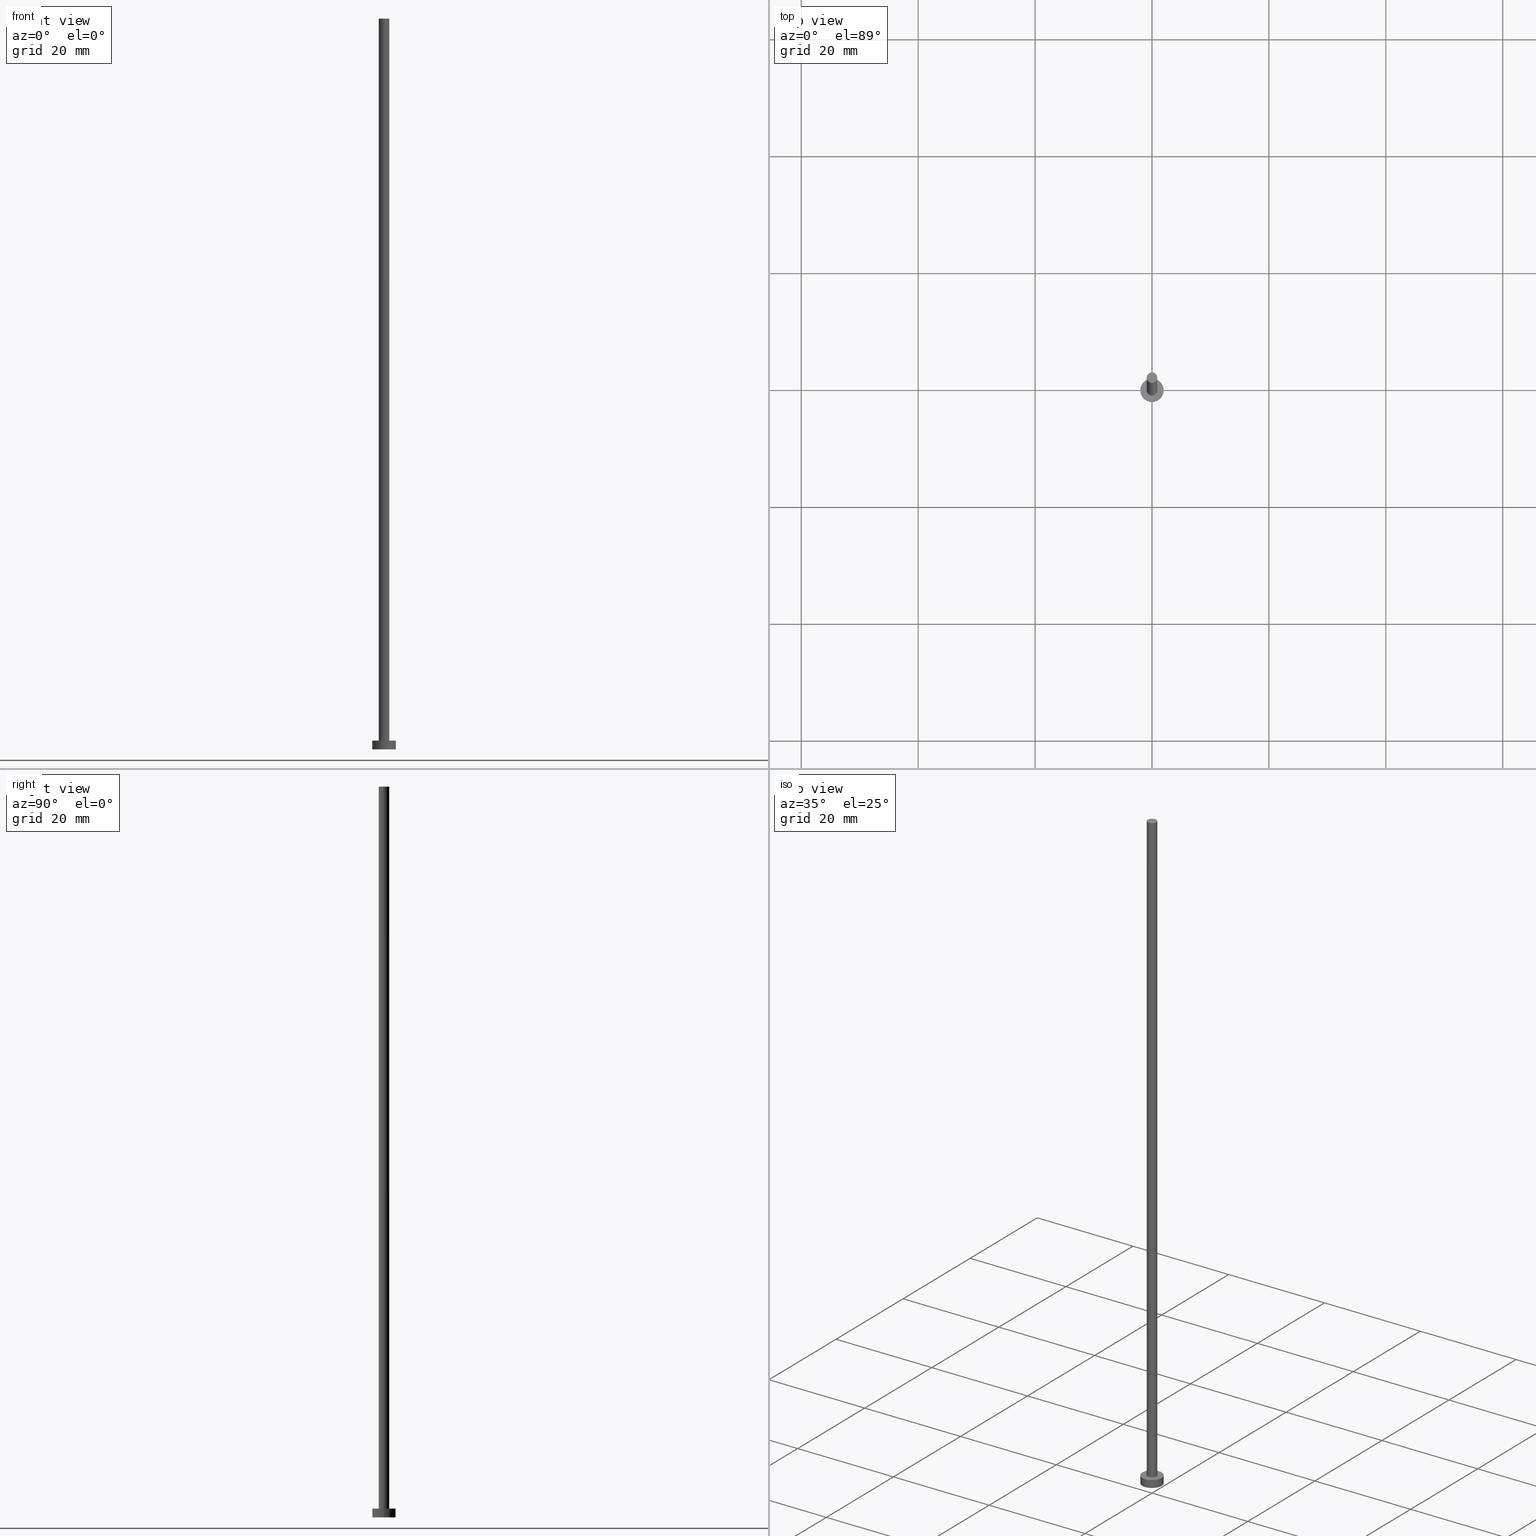
[diagram: canonical four-view strip — front | top / right | iso, engineering-drawing reading convention]
A machine part, canonical four-view strip (front | top / right | iso — engineering-drawing reading convention). The complete STEP part file that produces these views, byte-faithful:
ISO-10303-21;
HEADER;
FILE_DESCRIPTION (( 'STEP AP203' ),
    '1' );
FILE_NAME ('3f76.STEP',
    '2023-02-12T12:54:41',
    ( '' ),
    ( '' ),
    'SwSTEP 2.0',
    'SolidWorks 2019',
    '' );
FILE_SCHEMA (( 'CONFIG_CONTROL_DESIGN' ));
ENDSEC;

DATA;
#1 = LOCAL_TIME ( 13, 54, 41.00000000000000000, #29 ) ;
#2 = CYLINDRICAL_SURFACE ( 'NONE', #137, 2.000000000000000000 ) ;
#3 = ADVANCED_FACE ( 'NONE', ( #32 ), #213, .T. ) ;
#4 = ORIENTED_EDGE ( 'NONE', *, *, #41, .F. ) ;
#5 = AXIS2_PLACEMENT_3D ( 'NONE', #56, #33, #232 ) ;
#6 = PERSON_AND_ORGANIZATION ( #30, #24 ) ;
#7 = ORIENTED_EDGE ( 'NONE', *, *, #164, .F. ) ;
#8 = VERTEX_POINT ( 'NONE', #11 ) ;
#9 = CARTESIAN_POINT ( 'NONE',  ( -2.000000000000000000, 0.000000000000000000, 0.000000000000000000 ) ) ;
#10 = CARTESIAN_POINT ( 'NONE',  ( 0.000000000000000000, 0.000000000000000000, 1.500000000000000000 ) ) ;
#11 = CARTESIAN_POINT ( 'NONE',  ( 2.000000000000000000, 2.449293598294706414E-16, 0.000000000000000000 ) ) ;
#12 = APPROVAL_PERSON_ORGANIZATION ( #6, #86, #207 ) ;
#13 = CARTESIAN_POINT ( 'NONE',  ( 0.000000000000000000, 0.000000000000000000, 0.000000000000000000 ) ) ;
#14 = MECHANICAL_CONTEXT ( 'NONE', #122, 'mechanical' ) ;
#15 = CARTESIAN_POINT ( 'NONE',  ( -0.9000000000000000222, 0.000000000000000000, 125.0000000000000000 ) ) ;
#16 = APPLICATION_PROTOCOL_DEFINITION ( 'international standard', 'config_control_design', 1994, #228 ) ;
#17 = CARTESIAN_POINT ( 'NONE',  ( -2.000000000000000000, 0.000000000000000000, 1.500000000000000000 ) ) ;
#18 = PLANE ( 'NONE',  #226 ) ;
#19 = DIRECTION ( 'NONE',  ( 0.000000000000000000, 0.000000000000000000, 1.000000000000000000 ) ) ;
#20 = COORDINATED_UNIVERSAL_TIME_OFFSET ( 1, 0, .AHEAD. ) ;
#21 = ADVANCED_FACE ( 'NONE', ( #151, #52 ), #198, .T. ) ;
#22 = AXIS2_PLACEMENT_3D ( 'NONE', #229, #200, #246 ) ;
#23 = CC_DESIGN_PERSON_AND_ORGANIZATION_ASSIGNMENT ( #147, #108, ( #201 ) ) ;
#24 = ORGANIZATION ( 'NEUR�EN�', 'NEUR�EN�', '' ) ;
#25 = CALENDAR_DATE ( 2023, 12, 2 ) ;
#26 = ORIENTED_EDGE ( 'NONE', *, *, #230, .T. ) ;
#27 = ORIENTED_EDGE ( 'NONE', *, *, #219, .T. ) ;
#28 = CARTESIAN_POINT ( 'NONE',  ( 0.000000000000000000, 0.000000000000000000, 125.0000000000000000 ) ) ;
#29 = COORDINATED_UNIVERSAL_TIME_OFFSET ( 1, 0, .AHEAD. ) ;
#30 = PERSON ( 'NEUR�EN�', 'NEUR�EN�', 'NEUR�EN�', ('NEUR�EN�'), ('NEUR�EN�'), ('NEUR�EN�') ) ;
#31 = CARTESIAN_POINT ( 'NONE',  ( 0.000000000000000000, 0.000000000000000000, 1.500000000000000000 ) ) ;
#32 = FACE_OUTER_BOUND ( 'NONE', #69, .T. ) ;
#33 = DIRECTION ( 'NONE',  ( 0.000000000000000000, 0.000000000000000000, 1.000000000000000000 ) ) ;
#34 = PRODUCT_RELATED_PRODUCT_CATEGORY ( 'detail', '', ( #92 ) ) ;
#35 = DIRECTION ( 'NONE',  ( 1.000000000000000000, 0.000000000000000000, 0.000000000000000000 ) ) ;
#36 = APPROVAL_PERSON_ORGANIZATION ( #102, #65, #53 ) ;
#37 = CARTESIAN_POINT ( 'NONE',  ( 0.9000000000000000222, 1.102182119232617788E-16, 125.0000000000000000 ) ) ;
#38 = ORIENTED_EDGE ( 'NONE', *, *, #177, .T. ) ;
#39 = DIRECTION ( 'NONE',  ( 1.000000000000000000, 0.000000000000000000, -0.000000000000000000 ) ) ;
#40 = APPROVAL_DATE_TIME ( #103, #214 ) ;
#41 = EDGE_CURVE ( 'NONE', #8, #107, #80, .T. ) ;
#42 = CARTESIAN_POINT ( 'NONE',  ( 0.000000000000000000, 0.000000000000000000, 1.500000000000000000 ) ) ;
#43 = ORIENTED_EDGE ( 'NONE', *, *, #244, .T. ) ;
#44 = DATE_AND_TIME ( #238, #175 ) ;
#45 = DIRECTION ( 'NONE',  ( 1.000000000000000000, 0.000000000000000000, 0.000000000000000000 ) ) ;
#46 = AXIS2_PLACEMENT_3D ( 'NONE', #13, #218, #82 ) ;
#47 = ORIENTED_EDGE ( 'NONE', *, *, #75, .T. ) ;
#48 = ORIENTED_EDGE ( 'NONE', *, *, #106, .T. ) ;
#49 = ADVANCED_BREP_SHAPE_REPRESENTATION ( '3f76', ( #181, #72 ), #163 ) ;
#50 = DATE_AND_TIME ( #109, #217 ) ;
#51 = PRODUCT_DEFINITION_SHAPE ( 'NONE', 'NONE',  #113 ) ;
#52 = FACE_OUTER_BOUND ( 'NONE', #76, .T. ) ;
#53 = APPROVAL_ROLE ( '' ) ;
#54 = EDGE_CURVE ( 'NONE', #67, #173, #85, .T. ) ;
#55 = DIRECTION ( 'NONE',  ( 0.000000000000000000, 0.000000000000000000, 1.000000000000000000 ) ) ;
#56 = CARTESIAN_POINT ( 'NONE',  ( 0.000000000000000000, 0.000000000000000000, 1.500000000000000000 ) ) ;
#57 = DIRECTION ( 'NONE',  ( -0.000000000000000000, -0.000000000000000000, -1.000000000000000000 ) ) ;
#58 = CC_DESIGN_SECURITY_CLASSIFICATION ( #204, ( #201 ) ) ;
#59 = CARTESIAN_POINT ( 'NONE',  ( 0.000000000000000000, 0.000000000000000000, 1.500000000000000000 ) ) ;
#60 = DIRECTION ( 'NONE',  ( -0.000000000000000000, -0.000000000000000000, -1.000000000000000000 ) ) ;
#61 = AXIS2_PLACEMENT_3D ( 'NONE', #31, #150, #250 ) ;
#62 =( NAMED_UNIT ( * ) PLANE_ANGLE_UNIT ( ) SI_UNIT ( $, .RADIAN. ) );
#63 = AXIS2_PLACEMENT_3D ( 'NONE', #254, #142, #39 ) ;
#64 = CALENDAR_DATE ( 2023, 12, 2 ) ;
#65 = APPROVAL ( #99, 'NEUR�EN�' ) ;
#66 = CARTESIAN_POINT ( 'NONE',  ( -0.9000000000000000222, 0.000000000000000000, 1.500000000000000000 ) ) ;
#67 = VERTEX_POINT ( 'NONE', #15 ) ;
#68 = CARTESIAN_POINT ( 'NONE',  ( 2.000000000000000000, 2.449293598294706414E-16, 1.500000000000000000 ) ) ;
#69 = EDGE_LOOP ( 'NONE', ( #130, #171, #129, #240 ) ) ;
#70 = AXIS2_PLACEMENT_3D ( 'NONE', #59, #97, #79 ) ;
#71 = ORIENTED_EDGE ( 'NONE', *, *, #177, .F. ) ;
#72 = AXIS2_PLACEMENT_3D ( 'NONE', #169, #77, #74 ) ;
#73 = SHAPE_DEFINITION_REPRESENTATION ( #51, #49 ) ;
#74 = DIRECTION ( 'NONE',  ( 1.000000000000000000, 0.000000000000000000, 0.000000000000000000 ) ) ;
#75 = EDGE_CURVE ( 'NONE', #158, #245, #205, .T. ) ;
#76 = EDGE_LOOP ( 'NONE', ( #26, #47 ) ) ;
#77 = DIRECTION ( 'NONE',  ( 0.000000000000000000, 0.000000000000000000, 1.000000000000000000 ) ) ;
#78 = ORIENTED_EDGE ( 'NONE', *, *, #172, .T. ) ;
#79 = DIRECTION ( 'NONE',  ( -1.000000000000000000, 0.000000000000000000, 0.000000000000000000 ) ) ;
#80 = CIRCLE ( 'NONE', #46, 2.000000000000000000 ) ;
#81 = DIRECTION ( 'NONE',  ( -0.000000000000000000, -0.000000000000000000, -1.000000000000000000 ) ) ;
#82 = DIRECTION ( 'NONE',  ( 1.000000000000000000, 0.000000000000000000, 0.000000000000000000 ) ) ;
#83 = CC_DESIGN_DATE_AND_TIME_ASSIGNMENT ( #50, #194, ( #204 ) ) ;
#84 = PERSON_AND_ORGANIZATION ( #30, #24 ) ;
#85 = CIRCLE ( 'NONE', #212, 0.9000000000000000222 ) ;
#86 = APPROVAL ( #91, 'NEUR�EN�' ) ;
#87 = PERSON_AND_ORGANIZATION_ROLE ( 'creator' ) ;
#88 = CIRCLE ( 'NONE', #144, 2.000000000000000000 ) ;
#89 = CARTESIAN_POINT ( 'NONE',  ( 0.000000000000000000, 0.000000000000000000, 125.0000000000000000 ) ) ;
#90 = VERTEX_POINT ( 'NONE', #153 ) ;
#91 = APPROVAL_STATUS ( 'not_yet_approved' ) ;
#92 = PRODUCT ( '3f76', '3f76', '', ( #14 ) ) ;
#93 = ORIENTED_EDGE ( 'NONE', *, *, #106, .F. ) ;
#94 = EDGE_LOOP ( 'NONE', ( #93, #146 ) ) ;
#95 = FACE_OUTER_BOUND ( 'NONE', #206, .T. ) ;
#96 = CARTESIAN_POINT ( 'NONE',  ( -0.9000000000000000222, 0.000000000000000000, 125.0000000000000000 ) ) ;
#97 = DIRECTION ( 'NONE',  ( -0.000000000000000000, -0.000000000000000000, -1.000000000000000000 ) ) ;
#98 = LINE ( 'NONE', #180, #168 ) ;
#99 = APPROVAL_STATUS ( 'not_yet_approved' ) ;
#100 = CC_DESIGN_PERSON_AND_ORGANIZATION_ASSIGNMENT ( #112, #227, ( #204 ) ) ;
#101 = FACE_OUTER_BOUND ( 'NONE', #243, .T. ) ;
#102 = PERSON_AND_ORGANIZATION ( #30, #24 ) ;
#103 = DATE_AND_TIME ( #64, #237 ) ;
#104 = LOCAL_TIME ( 13, 54, 41.00000000000000000, #192 ) ;
#105 = PERSON_AND_ORGANIZATION ( #30, #24 ) ;
#106 = EDGE_CURVE ( 'NONE', #191, #90, #124, .T. ) ;
#107 = VERTEX_POINT ( 'NONE', #9 ) ;
#108 = PERSON_AND_ORGANIZATION_ROLE ( 'design_supplier' ) ;
#109 = CALENDAR_DATE ( 2023, 12, 2 ) ;
#110 = VECTOR ( 'NONE', #209, 1000.000000000000000 ) ;
#111 = ORIENTED_EDGE ( 'NONE', *, *, #219, .F. ) ;
#112 = PERSON_AND_ORGANIZATION ( #30, #24 ) ;
#113 = PRODUCT_DEFINITION ( 'NEZN�M�', '', #201, #141 ) ;
#114 = DIRECTION ( 'NONE',  ( -1.000000000000000000, 0.000000000000000000, 0.000000000000000000 ) ) ;
#115 = CALENDAR_DATE ( 2023, 12, 2 ) ;
#116 = DIRECTION ( 'NONE',  ( 1.000000000000000000, 0.000000000000000000, 0.000000000000000000 ) ) ;
#117 = DIRECTION ( 'NONE',  ( 1.000000000000000000, 0.000000000000000000, 0.000000000000000000 ) ) ;
#118 = CARTESIAN_POINT ( 'NONE',  ( 0.000000000000000000, 0.000000000000000000, 1.500000000000000000 ) ) ;
#119 = ADVANCED_FACE ( 'NONE', ( #121 ), #234, .T. ) ;
#120 = UNCERTAINTY_MEASURE_WITH_UNIT (LENGTH_MEASURE( 1.000000000000000082E-05 ), #251, 'distance_accuracy_value', 'NONE');
#121 = FACE_OUTER_BOUND ( 'NONE', #239, .T. ) ;
#122 = APPLICATION_CONTEXT ( 'configuration controlled 3d designs of mechanical parts and assemblies' ) ;
#123 = APPROVAL_ROLE ( '' ) ;
#124 = CIRCLE ( 'NONE', #5, 0.9000000000000000222 ) ;
#125 = DATE_AND_TIME ( #115, #1 ) ;
#126 = ADVANCED_FACE ( 'NONE', ( #95 ), #18, .F. ) ;
#127 = APPLICATION_PROTOCOL_DEFINITION ( 'international standard', 'config_control_design', 1994, #122 ) ;
#128 = CC_DESIGN_APPROVAL ( #214, ( #201 ) ) ;
#129 = ORIENTED_EDGE ( 'NONE', *, *, #222, .T. ) ;
#130 = ORIENTED_EDGE ( 'NONE', *, *, #244, .F. ) ;
#131 = CC_DESIGN_PERSON_AND_ORGANIZATION_ASSIGNMENT ( #186, #203, ( #201 ) ) ;
#132 = DIRECTION ( 'NONE',  ( 0.000000000000000000, 0.000000000000000000, 1.000000000000000000 ) ) ;
#133 = SECURITY_CLASSIFICATION_LEVEL ( 'unclassified' ) ;
#134 = CARTESIAN_POINT ( 'NONE',  ( 0.000000000000000000, 0.000000000000000000, 125.0000000000000000 ) ) ;
#135 = DIRECTION ( 'NONE',  ( 0.000000000000000000, 0.000000000000000000, 1.000000000000000000 ) ) ;
#136 = EDGE_CURVE ( 'NONE', #67, #191, #199, .T. ) ;
#137 = AXIS2_PLACEMENT_3D ( 'NONE', #42, #60, #157 ) ;
#138 = CARTESIAN_POINT ( 'NONE',  ( 2.000000000000000000, 2.449293598294706414E-16, 1.500000000000000000 ) ) ;
#139 = CLOSED_SHELL ( 'NONE', ( #3, #233, #143, #21, #126, #119, #182 ) ) ;
#140 = CARTESIAN_POINT ( 'NONE',  ( 0.000000000000000000, 0.000000000000000000, 1.500000000000000000 ) ) ;
#141 = DESIGN_CONTEXT ( 'detailed design', #228, 'design' ) ;
#142 = DIRECTION ( 'NONE',  ( 0.000000000000000000, 0.000000000000000000, 1.000000000000000000 ) ) ;
#143 = ADVANCED_FACE ( 'NONE', ( #101 ), #247, .T. ) ;
#144 = AXIS2_PLACEMENT_3D ( 'NONE', #140, #253, #45 ) ;
#145 = VECTOR ( 'NONE', #176, 1000.000000000000000 ) ;
#146 = ORIENTED_EDGE ( 'NONE', *, *, #222, .F. ) ;
#147 = PERSON_AND_ORGANIZATION ( #30, #24 ) ;
#148 = AXIS2_PLACEMENT_3D ( 'NONE', #89, #225, #35 ) ;
#149 = EDGE_LOOP ( 'NONE', ( #211, #27, #202, #210 ) ) ;
#150 = DIRECTION ( 'NONE',  ( 0.000000000000000000, 0.000000000000000000, 1.000000000000000000 ) ) ;
#151 = FACE_BOUND ( 'NONE', #94, .T. ) ;
#152 = DIRECTION ( 'NONE',  ( 0.000000000000000000, 0.000000000000000000, 1.000000000000000000 ) ) ;
#153 = CARTESIAN_POINT ( 'NONE',  ( 0.9000000000000000222, 1.102182119232617788E-16, 1.500000000000000000 ) ) ;
#154 = CARTESIAN_POINT ( 'NONE',  ( 0.000000000000000000, 0.000000000000000000, 0.000000000000000000 ) ) ;
#155 = PLANE ( 'NONE',  #63 ) ;
#156 = AXIS2_PLACEMENT_3D ( 'NONE', #118, #132, #117 ) ;
#157 = DIRECTION ( 'NONE',  ( -1.000000000000000000, 0.000000000000000000, 0.000000000000000000 ) ) ;
#158 = VERTEX_POINT ( 'NONE', #138 ) ;
#159 = COORDINATED_UNIVERSAL_TIME_OFFSET ( 1, 0, .AHEAD. ) ;
#160 = APPROVAL_DATE_TIME ( #125, #65 ) ;
#161 = CC_DESIGN_PERSON_AND_ORGANIZATION_ASSIGNMENT ( #255, #87, ( #113 ) ) ;
#162 = DIRECTION ( 'NONE',  ( 1.000000000000000000, 0.000000000000000000, 0.000000000000000000 ) ) ;
#163 =( GEOMETRIC_REPRESENTATION_CONTEXT ( 3 ) GLOBAL_UNCERTAINTY_ASSIGNED_CONTEXT ( ( #120 ) ) GLOBAL_UNIT_ASSIGNED_CONTEXT ( ( #251, #62, #188 ) ) REPRESENTATION_CONTEXT ( 'NONE', 'WORKASPACE' ) );
#164 = EDGE_CURVE ( 'NONE', #173, #90, #178, .T. ) ;
#165 = ORIENTED_EDGE ( 'NONE', *, *, #230, .F. ) ;
#166 = COORDINATED_UNIVERSAL_TIME_OFFSET ( 1, 0, .AHEAD. ) ;
#167 = ORIENTED_EDGE ( 'NONE', *, *, #54, .T. ) ;
#168 = VECTOR ( 'NONE', #174, 1000.000000000000000 ) ;
#169 = CARTESIAN_POINT ( 'NONE',  ( 0.000000000000000000, 0.000000000000000000, 0.000000000000000000 ) ) ;
#170 = CC_DESIGN_APPROVAL ( #65, ( #113 ) ) ;
#171 = ORIENTED_EDGE ( 'NONE', *, *, #164, .T. ) ;
#172 = EDGE_CURVE ( 'NONE', #245, #107, #98, .T. ) ;
#173 = VERTEX_POINT ( 'NONE', #37 ) ;
#174 = DIRECTION ( 'NONE',  ( -0.000000000000000000, -0.000000000000000000, -1.000000000000000000 ) ) ;
#175 = LOCAL_TIME ( 13, 54, 41.00000000000000000, #159 ) ;
#176 = DIRECTION ( 'NONE',  ( -0.000000000000000000, -0.000000000000000000, -1.000000000000000000 ) ) ;
#177 = EDGE_CURVE ( 'NONE', #107, #8, #223, .T. ) ;
#178 = LINE ( 'NONE', #248, #184 ) ;
#179 = PERSON_AND_ORGANIZATION_ROLE ( 'design_owner' ) ;
#180 = CARTESIAN_POINT ( 'NONE',  ( -2.000000000000000000, 0.000000000000000000, 1.500000000000000000 ) ) ;
#181 = MANIFOLD_SOLID_BREP ( 'P�idat vysunut�m3', #139 ) ;
#182 = ADVANCED_FACE ( 'NONE', ( #185 ), #155, .T. ) ;
#183 = CIRCLE ( 'NONE', #148, 0.9000000000000000222 ) ;
#184 = VECTOR ( 'NONE', #81, 1000.000000000000000 ) ;
#185 = FACE_OUTER_BOUND ( 'NONE', #224, .T. ) ;
#186 = PERSON_AND_ORGANIZATION ( #30, #24 ) ;
#187 = CARTESIAN_POINT ( 'NONE',  ( 0.000000000000000000, 0.000000000000000000, 0.000000000000000000 ) ) ;
#188 =( NAMED_UNIT ( * ) SI_UNIT ( $, .STERADIAN. ) SOLID_ANGLE_UNIT ( ) );
#189 = CC_DESIGN_PERSON_AND_ORGANIZATION_ASSIGNMENT ( #84, #179, ( #92 ) ) ;
#190 = AXIS2_PLACEMENT_3D ( 'NONE', #187, #19, #162 ) ;
#191 = VERTEX_POINT ( 'NONE', #66 ) ;
#192 = COORDINATED_UNIVERSAL_TIME_OFFSET ( 1, 0, .AHEAD. ) ;
#193 = ORIENTED_EDGE ( 'NONE', *, *, #136, .T. ) ;
#194 = DATE_TIME_ROLE ( 'classification_date' ) ;
#195 = CC_DESIGN_DATE_AND_TIME_ASSIGNMENT ( #44, #221, ( #113 ) ) ;
#196 = ORIENTED_EDGE ( 'NONE', *, *, #54, .F. ) ;
#197 = APPROVAL_DATE_TIME ( #241, #86 ) ;
#198 = PLANE ( 'NONE',  #61 ) ;
#199 = LINE ( 'NONE', #96, #145 ) ;
#200 = DIRECTION ( 'NONE',  ( -0.000000000000000000, -0.000000000000000000, -1.000000000000000000 ) ) ;
#201 = PRODUCT_DEFINITION_FORMATION_WITH_SPECIFIED_SOURCE ( 'LIBOVOLN�', '', #92, .NOT_KNOWN. ) ;
#202 = ORIENTED_EDGE ( 'NONE', *, *, #41, .T. ) ;
#203 = PERSON_AND_ORGANIZATION_ROLE ( 'creator' ) ;
#204 = SECURITY_CLASSIFICATION ( '', '', #133 ) ;
#205 = CIRCLE ( 'NONE', #156, 2.000000000000000000 ) ;
#206 = EDGE_LOOP ( 'NONE', ( #71, #4 ) ) ;
#207 = APPROVAL_ROLE ( '' ) ;
#208 = AXIS2_PLACEMENT_3D ( 'NONE', #10, #55, #116 ) ;
#209 = DIRECTION ( 'NONE',  ( -0.000000000000000000, -0.000000000000000000, -1.000000000000000000 ) ) ;
#210 = ORIENTED_EDGE ( 'NONE', *, *, #172, .F. ) ;
#211 = ORIENTED_EDGE ( 'NONE', *, *, #75, .F. ) ;
#212 = AXIS2_PLACEMENT_3D ( 'NONE', #134, #152, #215 ) ;
#213 = CYLINDRICAL_SURFACE ( 'NONE', #22, 0.9000000000000000222 ) ;
#214 = APPROVAL ( #235, 'NEUR�EN�' ) ;
#215 = DIRECTION ( 'NONE',  ( 1.000000000000000000, 0.000000000000000000, 0.000000000000000000 ) ) ;
#216 = DIRECTION ( 'NONE',  ( 1.000000000000000000, 0.000000000000000000, -0.000000000000000000 ) ) ;
#217 = LOCAL_TIME ( 13, 54, 41.00000000000000000, #166 ) ;
#218 = DIRECTION ( 'NONE',  ( 0.000000000000000000, 0.000000000000000000, 1.000000000000000000 ) ) ;
#219 = EDGE_CURVE ( 'NONE', #158, #8, #220, .T. ) ;
#220 = LINE ( 'NONE', #68, #110 ) ;
#221 = DATE_TIME_ROLE ( 'creation_date' ) ;
#222 = EDGE_CURVE ( 'NONE', #90, #191, #249, .T. ) ;
#223 = CIRCLE ( 'NONE', #190, 2.000000000000000000 ) ;
#224 = EDGE_LOOP ( 'NONE', ( #167, #43 ) ) ;
#225 = DIRECTION ( 'NONE',  ( 0.000000000000000000, 0.000000000000000000, 1.000000000000000000 ) ) ;
#226 = AXIS2_PLACEMENT_3D ( 'NONE', #154, #135, #216 ) ;
#227 = PERSON_AND_ORGANIZATION_ROLE ( 'classification_officer' ) ;
#228 = APPLICATION_CONTEXT ( 'configuration controlled 3d designs of mechanical parts and assemblies' ) ;
#229 = CARTESIAN_POINT ( 'NONE',  ( 0.000000000000000000, 0.000000000000000000, 125.0000000000000000 ) ) ;
#230 = EDGE_CURVE ( 'NONE', #245, #158, #88, .T. ) ;
#231 = APPROVAL_PERSON_ORGANIZATION ( #105, #214, #123 ) ;
#232 = DIRECTION ( 'NONE',  ( 1.000000000000000000, 0.000000000000000000, 0.000000000000000000 ) ) ;
#233 = ADVANCED_FACE ( 'NONE', ( #236 ), #2, .T. ) ;
#234 = CYLINDRICAL_SURFACE ( 'NONE', #252, 0.9000000000000000222 ) ;
#235 = APPROVAL_STATUS ( 'not_yet_approved' ) ;
#236 = FACE_OUTER_BOUND ( 'NONE', #149, .T. ) ;
#237 = LOCAL_TIME ( 13, 54, 41.00000000000000000, #20 ) ;
#238 = CALENDAR_DATE ( 2023, 12, 2 ) ;
#239 = EDGE_LOOP ( 'NONE', ( #7, #196, #193, #48 ) ) ;
#240 = ORIENTED_EDGE ( 'NONE', *, *, #136, .F. ) ;
#241 = DATE_AND_TIME ( #25, #104 ) ;
#242 = CC_DESIGN_APPROVAL ( #86, ( #204 ) ) ;
#243 = EDGE_LOOP ( 'NONE', ( #111, #165, #78, #38 ) ) ;
#244 = EDGE_CURVE ( 'NONE', #173, #67, #183, .T. ) ;
#245 = VERTEX_POINT ( 'NONE', #17 ) ;
#246 = DIRECTION ( 'NONE',  ( -1.000000000000000000, 0.000000000000000000, 0.000000000000000000 ) ) ;
#247 = CYLINDRICAL_SURFACE ( 'NONE', #70, 2.000000000000000000 ) ;
#248 = CARTESIAN_POINT ( 'NONE',  ( 0.9000000000000000222, 1.102182119232617788E-16, 125.0000000000000000 ) ) ;
#249 = CIRCLE ( 'NONE', #208, 0.9000000000000000222 ) ;
#250 = DIRECTION ( 'NONE',  ( 1.000000000000000000, 0.000000000000000000, -0.000000000000000000 ) ) ;
#251 =( LENGTH_UNIT ( ) NAMED_UNIT ( * ) SI_UNIT ( .MILLI., .METRE. ) );
#252 = AXIS2_PLACEMENT_3D ( 'NONE', #28, #57, #114 ) ;
#253 = DIRECTION ( 'NONE',  ( 0.000000000000000000, 0.000000000000000000, 1.000000000000000000 ) ) ;
#254 = CARTESIAN_POINT ( 'NONE',  ( 0.000000000000000000, 0.000000000000000000, 125.0000000000000000 ) ) ;
#255 = PERSON_AND_ORGANIZATION ( #30, #24 ) ;
ENDSEC;
END-ISO-10303-21;
